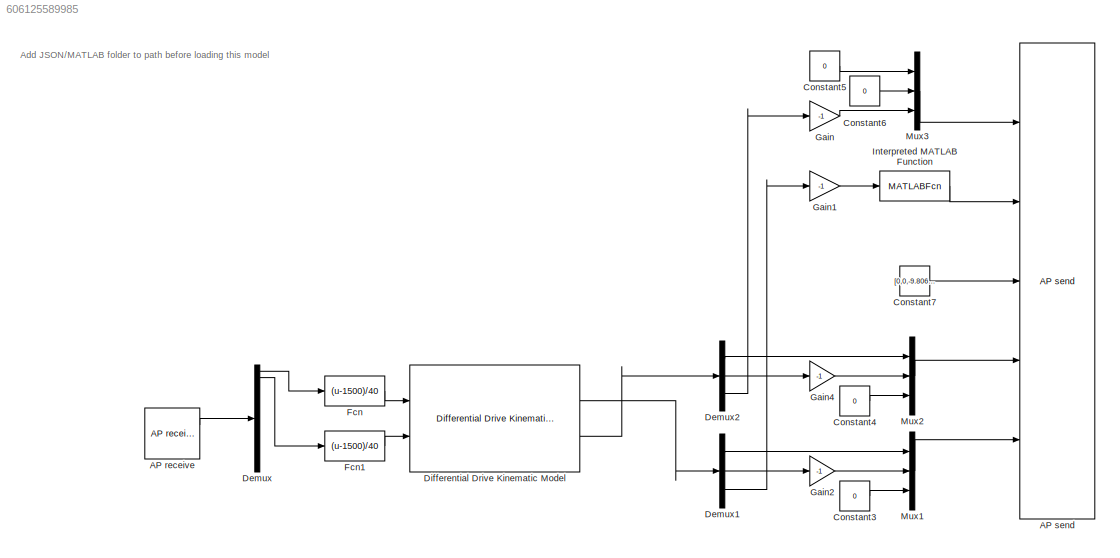
MODEL slx_606125589985
KIND model
CONFIG AbsTol = auto
CONFIG EnableMultiTasking = off
CONFIG FixedStep = 1/800
CONFIG MaxStep = auto
CONFIG MinStep = auto
CONFIG RelTol = 1e-3
CONFIG SampleTimeConstraint = Unconstrained
CONFIG Solver = VariableStepAuto
CONFIG SolverName = VariableStepAuto
CONFIG StartTime = 0.0
CONFIG StopTime = 100000
BLOCK [Reference] AP receive  REF=AP_Conector/AP receive
  Ports = [0, 2]
  SourceBlock = AP_Conector/AP receive
  SourceType = SubSystem
BLOCK [Reference] AP send  REF=AP_Conector/AP send
  Ports = [5]
  SourceBlock = AP_Conector/AP send
  SourceType = SubSystem
BLOCK [Constant] Constant3
  Value = 0
BLOCK [Constant] Constant4
  Value = 0
BLOCK [Constant] Constant5
  Value = 0
BLOCK [Constant] Constant6
  Value = 0
BLOCK [Constant] Constant7
  Value = [0,0,-9.80665]
BLOCK [Demux] Demux
  Outputs = 16
  Ports = [1, 16]
BLOCK [Demux] Demux1
  Outputs = 3
  Ports = [1, 3]
BLOCK [Demux] Demux2
  Outputs = 3
  Ports = [1, 3]
BLOCK [Reference] Differential Drive Kinematic Model  REF=robotmobilelib/Differential Drive Kinematic Model
  Ports = [2, 2]
  SourceBlock = robotmobilelib/Differential Drive Kinematic Model
  SourceProductBaseCode = RO
  SourceType = Differential Drive Kinematic Model
BLOCK [Fcn] Fcn
  Expr = (u-1500)/40
BLOCK [Fcn] Fcn1
  Expr = (u-1500)/40
BLOCK [Gain] Gain
  Gain = -1
BLOCK [Gain] Gain1
  Gain = -1
BLOCK [Gain] Gain2
  Gain = -1
BLOCK [Gain] Gain4
  Gain = -1
BLOCK [MATLABFcn] Interpreted MATLAB Function
  MATLABFcn = [0,0,wrapToPi(u)]
  Ports = [1, 1]
BLOCK [Mux] Mux1
  DisplayOption = bar
  Inputs = 3
  Ports = [3, 1]
BLOCK [Mux] Mux2
  DisplayOption = bar
  Inputs = 3
  Ports = [3, 1]
BLOCK [Mux] Mux3
  DisplayOption = bar
  Inputs = 3
  Ports = [3, 1]
ANNOTATION (root): Add JSON/MATLAB folder to path before loading this model
LINE AP receive:1 -> Demux:1
LINE Constant3:1 -> Mux1:3
LINE Constant4:1 -> Mux2:3
LINE Constant5:1 -> Mux3:1
LINE Constant6:1 -> Mux3:2
LINE Constant7:1 -> AP send:3
LINE Demux1:1 -> Mux1:1
LINE Demux1:2 -> Gain2:1
LINE Demux1:3 -> Gain1:1
LINE Demux2:1 -> Mux2:1
LINE Demux2:2 -> Gain4:1
LINE Demux2:3 -> Gain:1
LINE Demux:1 -> Fcn:1
LINE Demux:2 -> Fcn1:1
LINE Differential Drive Kinematic Model:1 -> Demux1:1
LINE Differential Drive Kinematic Model:2 -> Demux2:1
LINE Fcn1:1 -> Differential Drive Kinematic Model:2
LINE Fcn:1 -> Differential Drive Kinematic Model:1
LINE Gain1:1 -> Interpreted MATLAB Function:1
LINE Gain2:1 -> Mux1:2
LINE Gain4:1 -> Mux2:2
LINE Gain:1 -> Mux3:3
LINE Interpreted MATLAB Function:1 -> AP send:2
LINE Mux1:1 -> AP send:5
LINE Mux2:1 -> AP send:4
LINE Mux3:1 -> AP send:1
